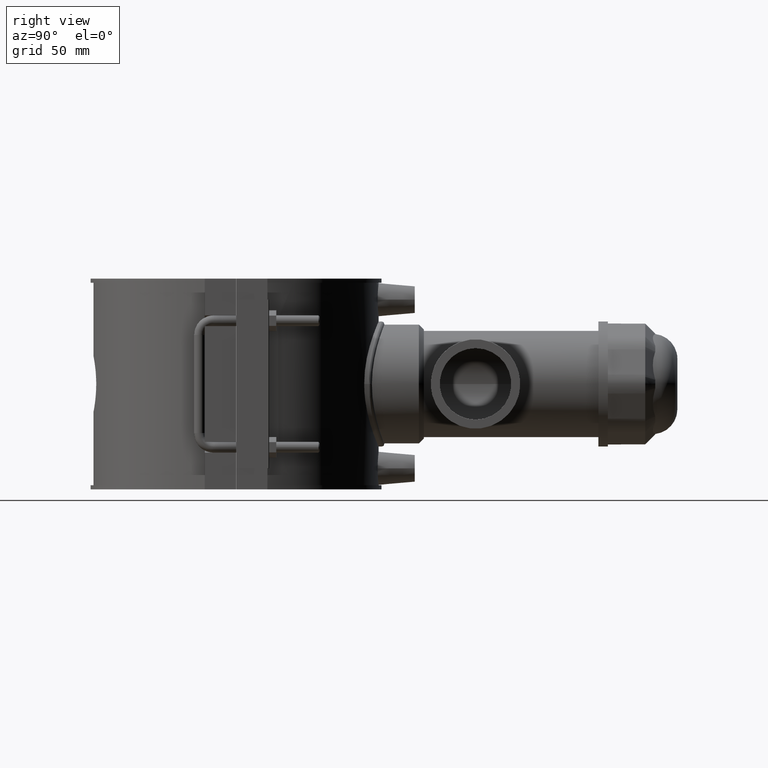
[diagram: clean part render]
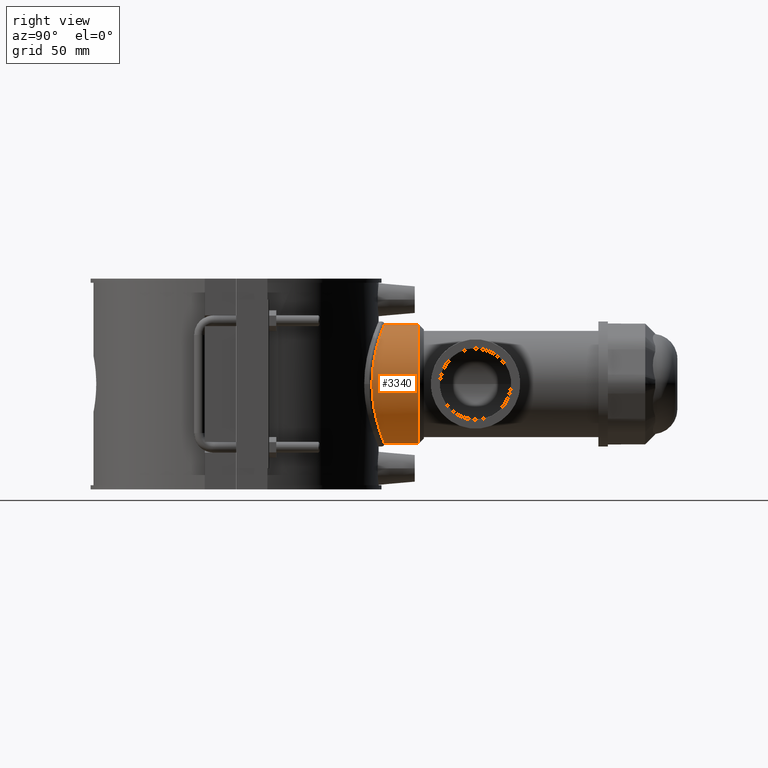
[diagram: same view with one face highlighted and labeled with its STEP entity id]
A machine part, right view. The second image highlights one B-rep face of the part: STEP entity #3340.
In plain terms, the highlighted cylindrical surface (bore or boss wall) has radius 33.25 mm, axis along (0, 1, 0).
Its self-contained STEP definition (entity closure, byte-faithful):
#632=FACE_BOUND('',#1034,.T.);
#689=B_SPLINE_CURVE_WITH_KNOTS('',3,(#4882,#4883,#4884,#4885,#4886,#4887,
#4888,#4889,#4890,#4891,#4892,#4893,#4894,#4895,#4896,#4897,#4898,#4899,
#4900,#4901,#4902,#4903,#4904,#4905,#4906,#4907,#4908,#4909,#4910,#4911,
#4912,#4913,#4914,#4915,#4916,#4917,#4918,#4919,#4920,#4921,#4922,#4923,
#4924,#4925,#4926,#4927,#4928,#4929,#4930,#4931,#4932,#4933,#4934,#4935,
#4936,#4937,#4938,#4939,#4940,#4941,#4942,#4943,#4944,#4945,#4946,#4947),
 .UNSPECIFIED.,.T.,.F.,(4,2,2,2,2,2,2,2,2,2,2,2,2,2,2,2,2,2,2,2,2,2,2,2,
2,2,2,2,2,2,2,2,4),(0.,0.634369048167235,1.26873809633447,1.9031071445017,
2.53747619266894,3.1711990208265,3.80492184898406,4.43864467714163,5.07236750529919,
5.70609033345675,6.33981316161432,6.97353598977188,7.60725881792944,8.24162786609668,
8.87599691426391,9.51036596243115,10.1447350105984,10.7791040587656,11.4134731069329,
12.0478421551001,12.6822112032673,13.3159340314249,13.9496568595824,14.58337968774,
15.2171025158976,15.8508253440551,16.4845481722127,17.1182710003703,17.7519938285278,
18.3863628766951,19.0207319248623,19.6551009730295,20.2894700211968),
 .UNSPECIFIED.);
#775=CYLINDRICAL_SURFACE('',#3550,33.25);
#824=FACE_OUTER_BOUND('',#1033,.T.);
#1033=EDGE_LOOP('',(#2226));
#1034=EDGE_LOOP('',(#2227));
#1294=CIRCLE('',#3551,33.25);
#1411=VERTEX_POINT('',#4879);
#1412=VERTEX_POINT('',#4881);
#1736=EDGE_CURVE('',#1411,#1411,#1294,.T.);
#1737=EDGE_CURVE('',#1412,#1412,#689,.T.);
#2226=ORIENTED_EDGE('',*,*,#1736,.F.);
#2227=ORIENTED_EDGE('',*,*,#1737,.F.);
#3340=ADVANCED_FACE('',(#824,#632),#775,.T.);
#3550=AXIS2_PLACEMENT_3D('',#4878,#3856,#3857);
#3551=AXIS2_PLACEMENT_3D('',#4880,#3858,#3859);
#3856=DIRECTION('center_axis',(0.,1.,3.06161699786838E-16));
#3857=DIRECTION('ref_axis',(0.,0.,1.));
#3858=DIRECTION('center_axis',(0.,1.,3.06161699786838E-16));
#3859=DIRECTION('ref_axis',(0.,0.,-1.));
#4878=CARTESIAN_POINT('Origin',(0.,52.525,-5.350175703775E-15));
#4879=CARTESIAN_POINT('',(4.07195060716495E-15,102.3,33.25));
#4880=CARTESIAN_POINT('Origin',(0.,102.3,9.88902290311489E-15));
#4881=CARTESIAN_POINT('',(33.25,76.0401838766846,1.66533453693773E-15));
#4882=CARTESIAN_POINT('Ctrl Pts',(33.25,76.0401838766846,1.66533453693773E-15));
#4883=CARTESIAN_POINT('Ctrl Pts',(33.25,76.0401838766846,2.11456349389078));
#4884=CARTESIAN_POINT('Ctrl Pts',(33.0450536477911,76.1308863708023,4.2924938353297));
#4885=CARTESIAN_POINT('Ctrl Pts',(32.1915951622462,76.4956772019777,8.60826784899953));
#4886=CARTESIAN_POINT('Ctrl Pts',(31.5433633935382,76.7693208262385,10.7462045370982));
#4887=CARTESIAN_POINT('Ctrl Pts',(29.8400097528693,77.4473117306067,14.8336997076393));
#4888=CARTESIAN_POINT('Ctrl Pts',(28.7835375486464,77.8514138120804,16.786964429088));
#4889=CARTESIAN_POINT('Ctrl Pts',(26.3511252291732,78.7080228769168,20.3939306700905));
#4890=CARTESIAN_POINT('Ctrl Pts',(24.9749344312996,79.1596732469402,22.0476665176059));
#4891=CARTESIAN_POINT('Ctrl Pts',(22.0491574944315,80.0239409756844,24.9734434544739));
#4892=CARTESIAN_POINT('Ctrl Pts',(20.3961383150138,80.4679732580769,26.3494436987401));
#4893=CARTESIAN_POINT('Ctrl Pts',(16.7888046701854,81.297190702485,28.7824891096377));
#4894=CARTESIAN_POINT('Ctrl Pts',(14.8344529640052,81.6816637453574,29.8397217063208));
#4895=CARTESIAN_POINT('Ctrl Pts',(10.7447564696788,82.3195322891463,31.543940979672));
#4896=CARTESIAN_POINT('Ctrl Pts',(8.60573613149118,82.5729914485112,32.1922823259322));
#4897=CARTESIAN_POINT('Ctrl Pts',(4.28959607706592,82.9093298526808,33.0454399460092));
#4898=CARTESIAN_POINT('Ctrl Pts',(2.11240942719188,82.992,33.25));
#4899=CARTESIAN_POINT('Ctrl Pts',(-2.11240942719188,82.992,33.25));
#4900=CARTESIAN_POINT('Ctrl Pts',(-4.28959607706592,82.9093298526808,33.0454399460092));
#4901=CARTESIAN_POINT('Ctrl Pts',(-8.60573613149118,82.5729914485112,32.1922823259322));
#4902=CARTESIAN_POINT('Ctrl Pts',(-10.7447564696788,82.3195322891463,31.543940979672));
#4903=CARTESIAN_POINT('Ctrl Pts',(-14.8344529640052,81.6816637453574,29.8397217063208));
#4904=CARTESIAN_POINT('Ctrl Pts',(-16.7888046701854,81.297190702485,28.7824891096377));
#4905=CARTESIAN_POINT('Ctrl Pts',(-20.3961383150138,80.4679732580769,26.3494436987401));
#4906=CARTESIAN_POINT('Ctrl Pts',(-22.0491574944315,80.0239409756844,24.9734434544739));
#4907=CARTESIAN_POINT('Ctrl Pts',(-24.9749344312996,79.1596732469403,22.0476665176059));
#4908=CARTESIAN_POINT('Ctrl Pts',(-26.3511252291732,78.7080228769168,20.3939306700905));
#4909=CARTESIAN_POINT('Ctrl Pts',(-28.7835375486464,77.8514138120804,16.786964429088));
#4910=CARTESIAN_POINT('Ctrl Pts',(-29.8400097528693,77.4473117306068,14.8336997076393));
#4911=CARTESIAN_POINT('Ctrl Pts',(-31.5433633935382,76.7693208262386,10.7462045370982));
#4912=CARTESIAN_POINT('Ctrl Pts',(-32.1915951622462,76.4956772019777,8.60826784899954));
#4913=CARTESIAN_POINT('Ctrl Pts',(-33.0450536477911,76.1308863708023,4.2924938353297));
#4914=CARTESIAN_POINT('Ctrl Pts',(-33.25,76.0401838766846,2.11456349389078));
#4915=CARTESIAN_POINT('Ctrl Pts',(-33.25,76.0401838766846,-2.11456349389078));
#4916=CARTESIAN_POINT('Ctrl Pts',(-33.0450536477911,76.1308863708023,-4.2924938353297));
#4917=CARTESIAN_POINT('Ctrl Pts',(-32.1915951622462,76.4956772019777,-8.60826784899953));
#4918=CARTESIAN_POINT('Ctrl Pts',(-31.5433633935382,76.7693208262385,-10.7462045370982));
#4919=CARTESIAN_POINT('Ctrl Pts',(-29.8400097528693,77.4473117306067,-14.8336997076393));
#4920=CARTESIAN_POINT('Ctrl Pts',(-28.7835375486464,77.8514138120804,-16.786964429088));
#4921=CARTESIAN_POINT('Ctrl Pts',(-26.3511252291732,78.7080228769168,-20.3939306700905));
#4922=CARTESIAN_POINT('Ctrl Pts',(-24.9749344312996,79.1596732469402,-22.0476665176059));
#4923=CARTESIAN_POINT('Ctrl Pts',(-22.0491574944315,80.0239409756844,-24.9734434544739));
#4924=CARTESIAN_POINT('Ctrl Pts',(-20.3961383150138,80.4679732580769,-26.3494436987401));
#4925=CARTESIAN_POINT('Ctrl Pts',(-16.7888046701854,81.297190702485,-28.7824891096376));
#4926=CARTESIAN_POINT('Ctrl Pts',(-14.8344529640052,81.6816637453574,-29.8397217063208));
#4927=CARTESIAN_POINT('Ctrl Pts',(-10.7447564696788,82.3195322891463,-31.543940979672));
#4928=CARTESIAN_POINT('Ctrl Pts',(-8.60573613149118,82.5729914485112,-32.1922823259322));
#4929=CARTESIAN_POINT('Ctrl Pts',(-4.28959607706592,82.9093298526808,-33.0454399460091));
#4930=CARTESIAN_POINT('Ctrl Pts',(-2.11240942719188,82.992,-33.25));
#4931=CARTESIAN_POINT('Ctrl Pts',(2.11240942719187,82.992,-33.25));
#4932=CARTESIAN_POINT('Ctrl Pts',(4.28959607706591,82.9093298526808,-33.0454399460092));
#4933=CARTESIAN_POINT('Ctrl Pts',(8.60573613149118,82.5729914485112,-32.1922823259322));
#4934=CARTESIAN_POINT('Ctrl Pts',(10.7447564696788,82.3195322891463,-31.543940979672));
#4935=CARTESIAN_POINT('Ctrl Pts',(14.8344529640052,81.6816637453574,-29.8397217063208));
#4936=CARTESIAN_POINT('Ctrl Pts',(16.7888046701854,81.297190702485,-28.7824891096377));
#4937=CARTESIAN_POINT('Ctrl Pts',(20.3961383150138,80.4679732580769,-26.3494436987401));
#4938=CARTESIAN_POINT('Ctrl Pts',(22.0491574944315,80.0239409756844,-24.9734434544739));
#4939=CARTESIAN_POINT('Ctrl Pts',(24.9749344312996,79.1596732469402,-22.0476665176059));
#4940=CARTESIAN_POINT('Ctrl Pts',(26.3511252291732,78.7080228769168,-20.3939306700905));
#4941=CARTESIAN_POINT('Ctrl Pts',(28.7835375486464,77.8514138120804,-16.786964429088));
#4942=CARTESIAN_POINT('Ctrl Pts',(29.8400097528693,77.4473117306067,-14.8336997076393));
#4943=CARTESIAN_POINT('Ctrl Pts',(31.5433633935382,76.7693208262386,-10.7462045370982));
#4944=CARTESIAN_POINT('Ctrl Pts',(32.1915951622462,76.4956772019777,-8.60826784899955));
#4945=CARTESIAN_POINT('Ctrl Pts',(33.0450536477911,76.1308863708023,-4.29249383532971));
#4946=CARTESIAN_POINT('Ctrl Pts',(33.25,76.0401838766846,-2.11456349389079));
#4947=CARTESIAN_POINT('Ctrl Pts',(33.25,76.0401838766846,0.));